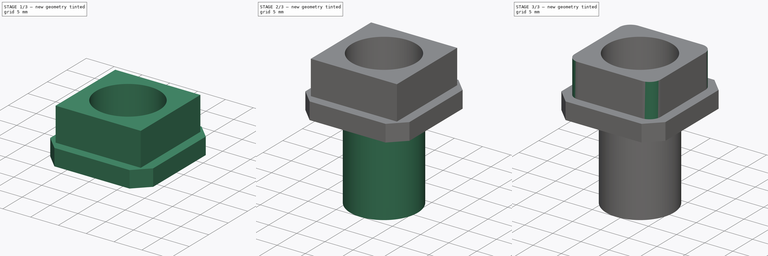
[diagram: build sequence overview — one tinted view per stage of 3, left to right]
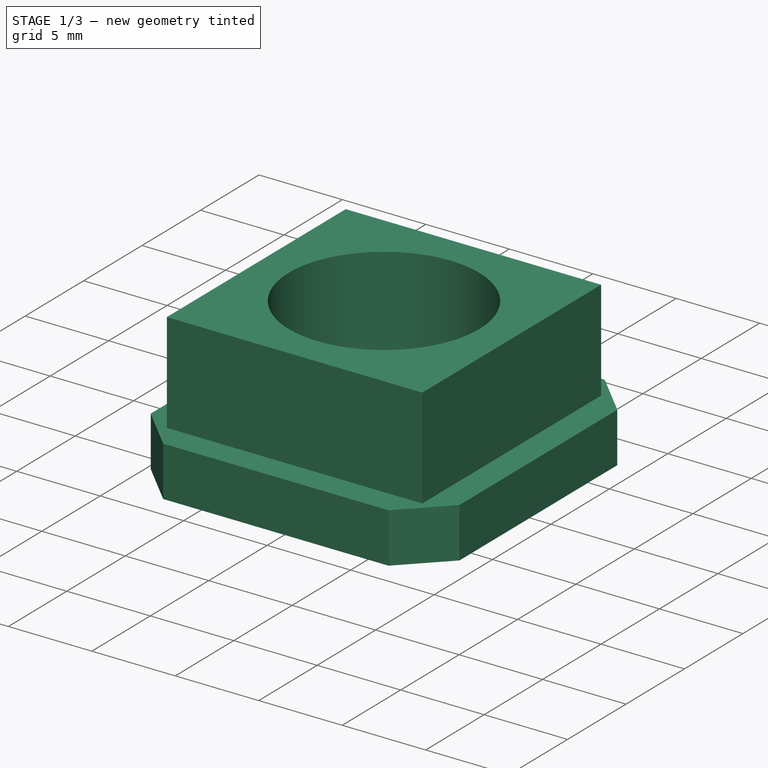
[diagram: stage 1 of 3 — iso view after this stage's code; geometry added in this stage tinted green]
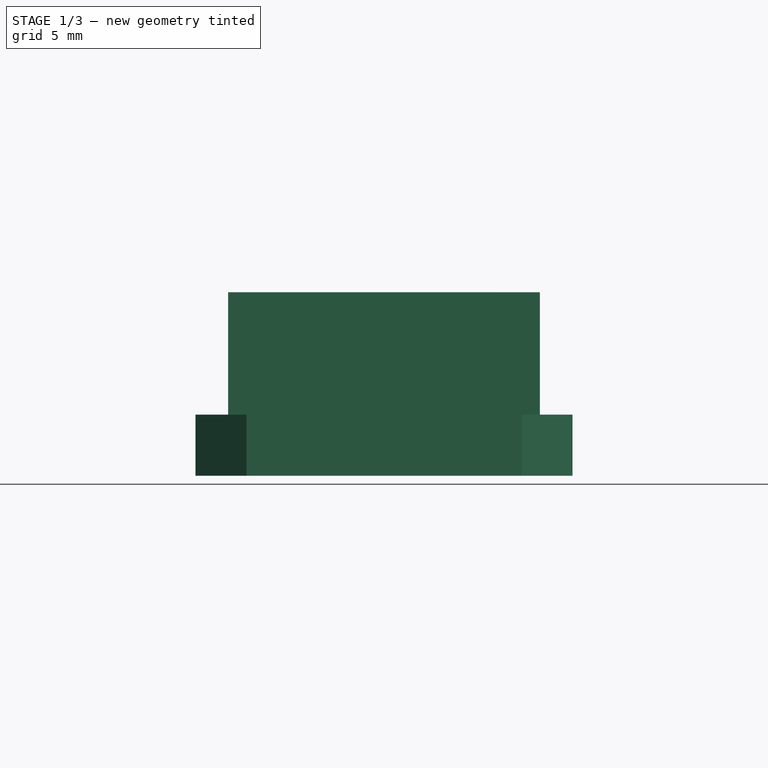
[diagram: stage 1 of 3 — front view after this stage's code; geometry added in this stage tinted green]
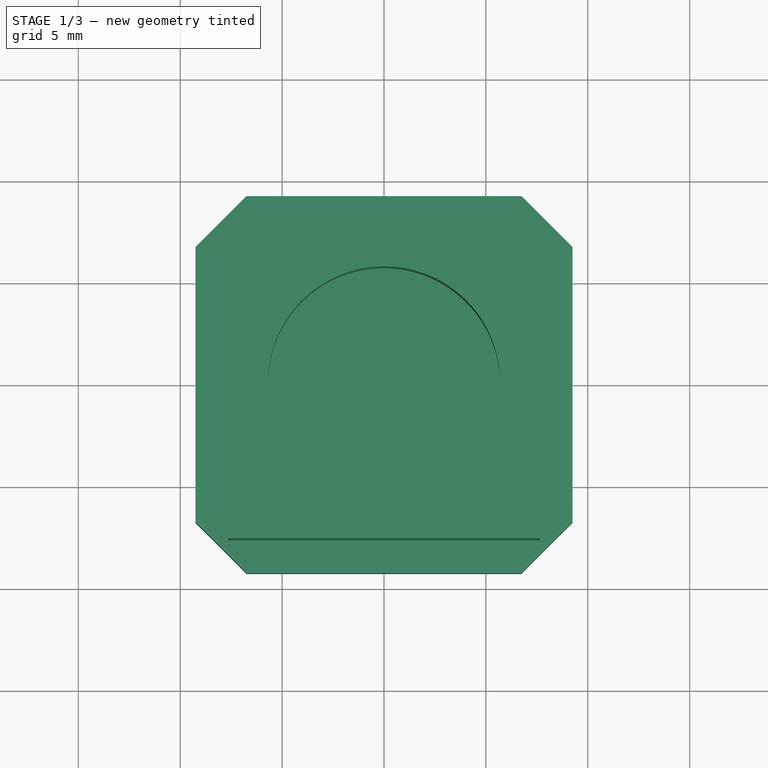
[diagram: stage 1 of 3 — top view after this stage's code; geometry added in this stage tinted green]
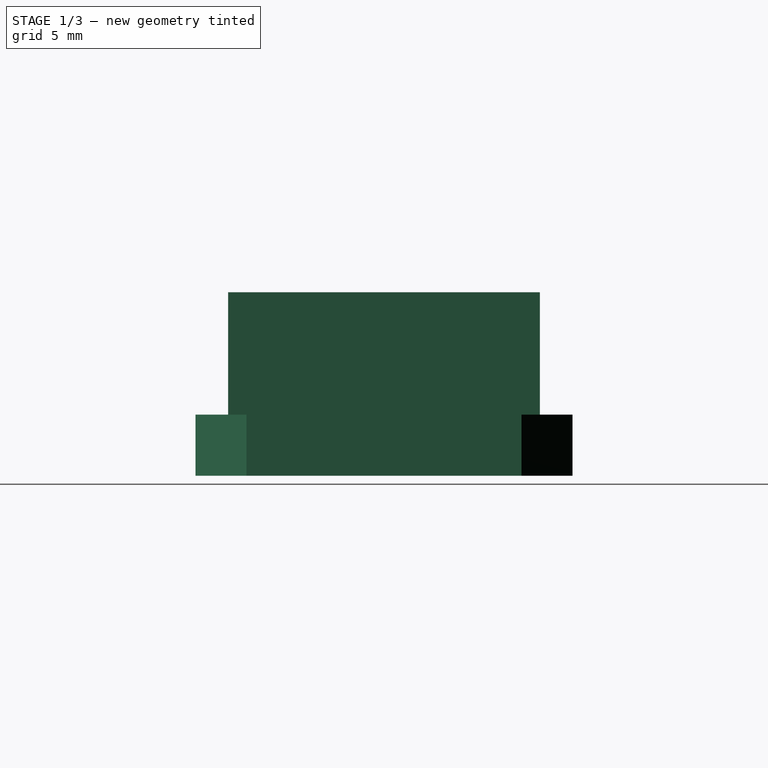
[diagram: stage 1 of 3 — right view after this stage's code; geometry added in this stage tinted green]
FCSTD DOCUMENT  (FreeCAD 0.15R4671 (Git))
Label: Capless Drive
License: All rights reserved
LicenseURL: http://en.wikipedia.org/wiki/All_rights_reserved
objects: Sketcher::SketchObject×4, PartDesign::Pad×3, PartDesign::Pocket×1, PartDesign::Fillet×1
note: 13 computed .brp shape members not serialized (recipe doc carries the construction recipe); baked Part::Feature solids carry a one-line shape summary decoded from their .brp

FEATURE [Sketcher::SketchObject] Sketch
  sketch-geometry (12):
    g0: LineSegment [constr] StartX=-9.25 StartY=9.25 StartZ=0 EndX=9.25 EndY=9.25 EndZ=0
    g1: LineSegment [constr] StartX=9.25 StartY=9.25 StartZ=0 EndX=9.25 EndY=-9.25 EndZ=0
    g2: LineSegment [constr] StartX=9.25 StartY=-9.25 StartZ=0 EndX=-9.25 EndY=-9.25 EndZ=0
    g3: LineSegment [constr] StartX=-9.25 StartY=-9.25 StartZ=0 EndX=-9.25 EndY=9.25 EndZ=0
    g4: LineSegment StartX=-9.25 StartY=6.75 StartZ=0 EndX=-6.75 EndY=9.25 EndZ=0
    g5: LineSegment StartX=-6.75 StartY=9.25 StartZ=0 EndX=6.75 EndY=9.25 EndZ=0
    g6: LineSegment StartX=6.75 StartY=9.25 StartZ=0 EndX=9.25 EndY=6.75 EndZ=0
    g7: LineSegment StartX=9.25 StartY=6.75 StartZ=0 EndX=9.25 EndY=-6.75 EndZ=0
    g8: LineSegment StartX=9.25 StartY=-6.75 StartZ=0 EndX=6.75 EndY=-9.25 EndZ=0
    g9: LineSegment StartX=6.75 StartY=-9.25 StartZ=0 EndX=-6.75 EndY=-9.25 EndZ=0
    g10: LineSegment StartX=-6.75 StartY=-9.25 StartZ=0 EndX=-9.25 EndY=-6.75 EndZ=0
    g11: LineSegment StartX=-9.25 StartY=-6.75 StartZ=0 EndX=-9.25 EndY=6.75 EndZ=0
  constraints (35):
    c: Coincident(g0,g1)
    c: Coincident(g1,g2)
    c: Coincident(g2,g3)
    c: Coincident(g3,g0)
    c: Horizontal(g2)
    c: Vertical(g1)
    c: Equal(g3,g0)
    c: Symmetric(g0,g0,g-2)
    c: Symmetric(g2,g0,g-1)
    c: Distance(g0) = 18.5
    c: PointOnObject(g4,g3)
    c: PointOnObject(g4,g0)
    c: Coincident(g4,g5)
    c: PointOnObject(g5,g0)
    c: Coincident(g5,g6)
    c: Coincident(g6,g7)
    c: PointOnObject(g7,g1)
    c: Coincident(g7,g8)
    c: PointOnObject(g8,g2)
    c: Coincident(g8,g9)
    c: Coincident(g9,g10)
    c: PointOnObject(g10,g3)
    c: Coincident(g10,g11)
    c: Coincident(g11,g4)
    c: Symmetric(g9,g8,g-2)
    c: Symmetric(g4,g5,g-2)
    c: Symmetric(g6,g7,g-1)
    c: Symmetric(g10,g4,g-1)
    c: Equal(g5,g7)
    c: Equal(g7,g9)
    c: Equal(g9,g11)
    c: Equal(g4,g6)
    c: Equal(g6,g8)
    c: Equal(g8,g10)
    c: Distance(g11) = 13.5
FEATURE [PartDesign::Pad] Pad
  Length = 3
  Length2 = 100
  Sketch = -> Sketch
  Type = 0
FEATURE [Sketcher::SketchObject] Sketch001
  Placement = pos=(0,0,3) rot=(0,0,1;0rad)
  Support = -> Pad [Face10]
  sketch-geometry (5):
    g0: LineSegment StartX=-7.65 StartY=7.65 StartZ=0 EndX=7.65 EndY=7.65 EndZ=0
    g1: LineSegment StartX=7.65 StartY=7.65 StartZ=0 EndX=7.65 EndY=-7.65 EndZ=0
    g2: LineSegment StartX=7.65 StartY=-7.65 StartZ=0 EndX=-7.65 EndY=-7.65 EndZ=0
    g3: LineSegment StartX=-7.65 StartY=-7.65 StartZ=0 EndX=-7.65 EndY=7.65 EndZ=0
    g4: Circle CenterX=0 CenterY=0 CenterZ=0 NormalX=0 NormalY=0 NormalZ=1 Radius=5.7
  constraints (14):
    c: Coincident(g0,g1)
    c: Coincident(g1,g2)
    c: Coincident(g2,g3)
    c: Coincident(g3,g0)
    c: Horizontal(g0)
    c: Horizontal(g2)
    c: Vertical(g1)
    c: Vertical(g3)
    c: Coincident(g4,g-1)
    c: Equal(g0,g3)
    c: Symmetric(g0,g0,g-2)
    c: Symmetric(g0,g2,g-1)
    c: Radius(g4) = 5.7
    c: Distance(g0) = 15.3
FEATURE [PartDesign::Pad] Pad001
  Length = 6
  Length2 = 100
  Sketch = -> Sketch001
  Type = 0
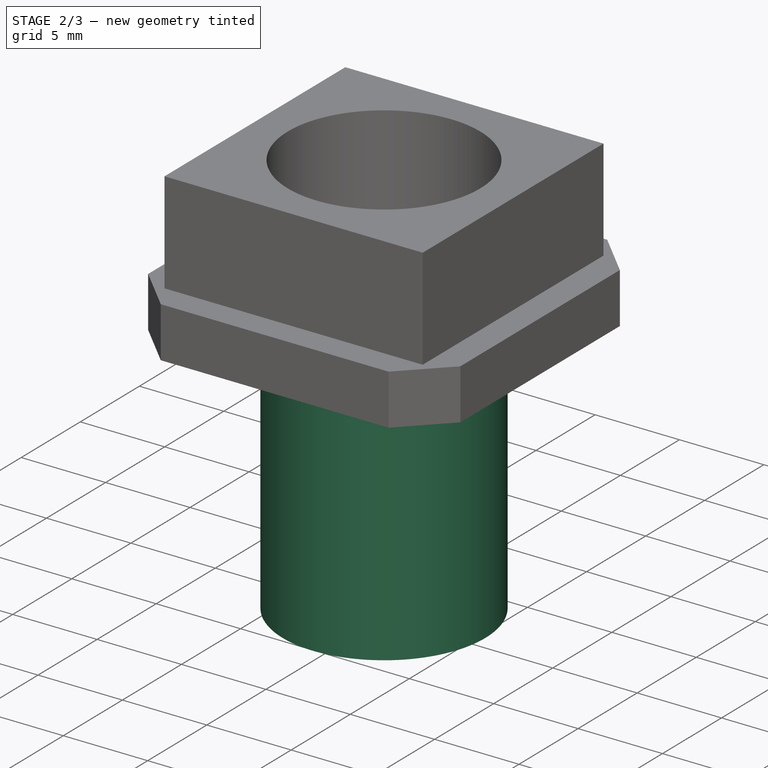
[diagram: stage 2 of 3 — iso view after this stage's code; geometry added in this stage tinted green]
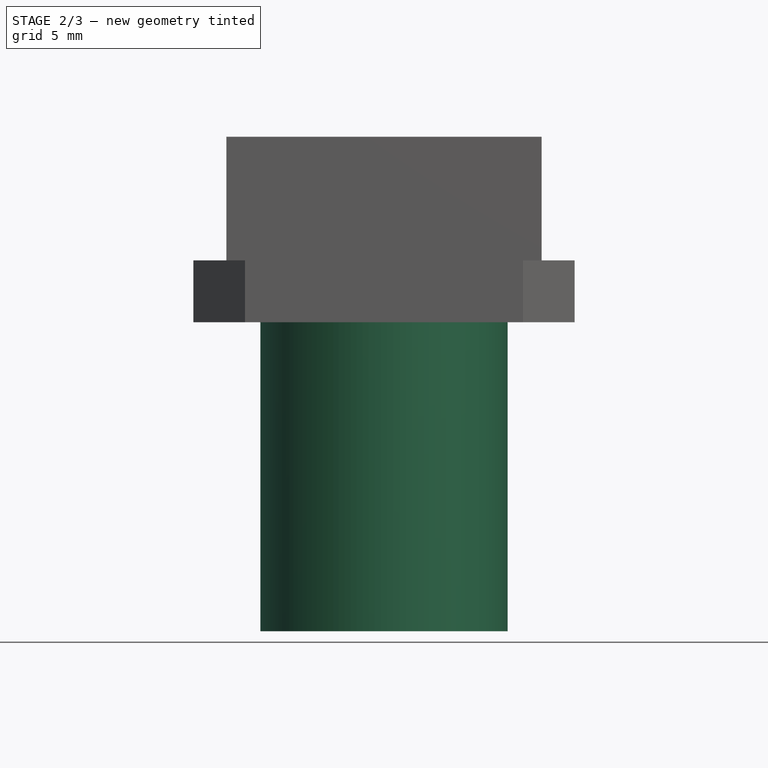
[diagram: stage 2 of 3 — front view after this stage's code; geometry added in this stage tinted green]
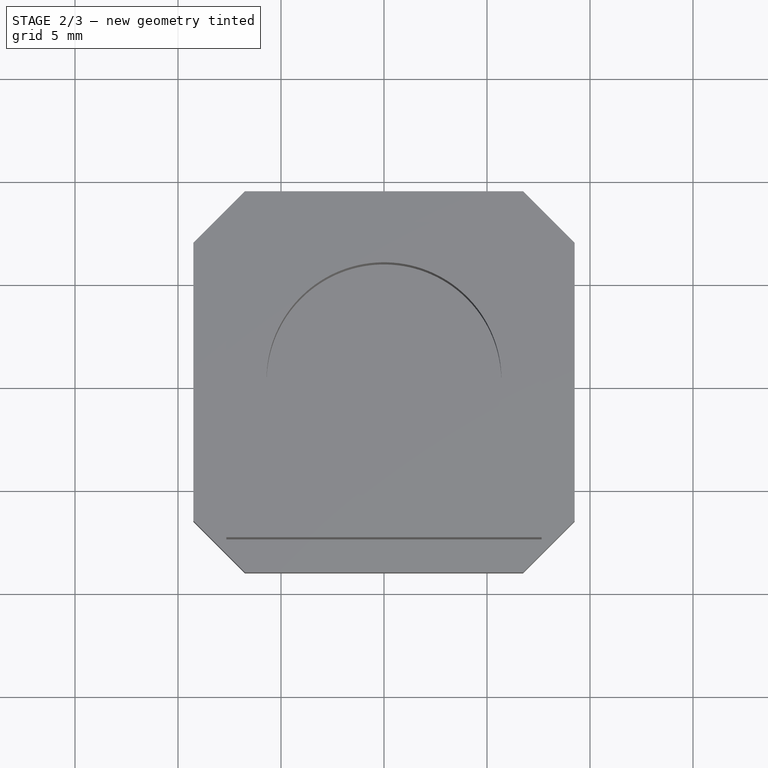
[diagram: stage 2 of 3 — top view after this stage's code; geometry added in this stage tinted green]
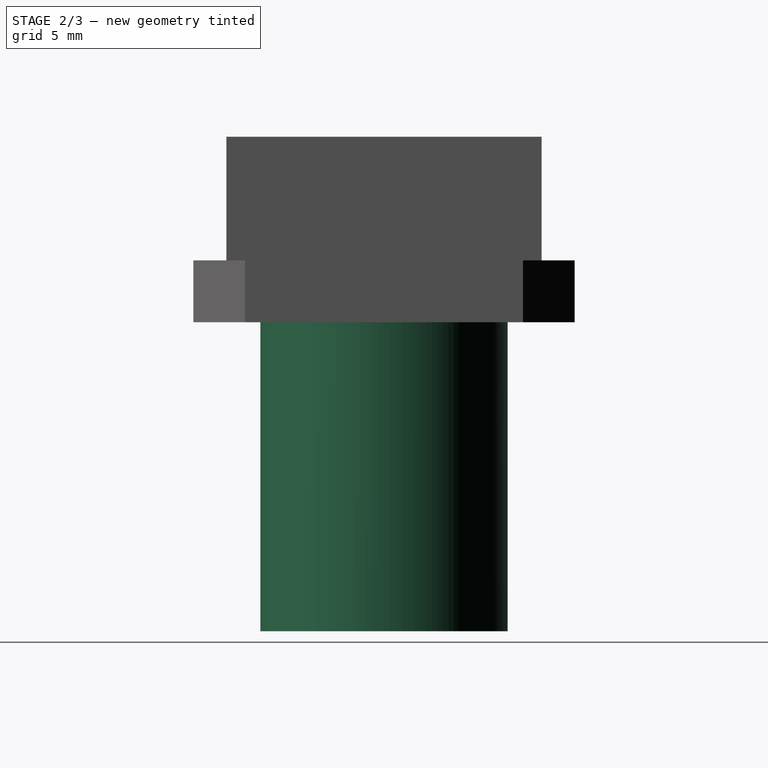
[diagram: stage 2 of 3 — right view after this stage's code; geometry added in this stage tinted green]
FEATURE [Sketcher::SketchObject] Sketch002
  Placement = pos=(0,0,0) rot=(1,0,0;3.14159rad)
  Support = -> Pad001 [Face4]
  sketch-geometry (1):
    g0: Circle CenterX=0 CenterY=0 CenterZ=0 NormalX=0 NormalY=0 NormalZ=1 Radius=6
  constraints (2):
    c: Coincident(g0,g-1)
    c: Radius(g0) = 6
FEATURE [PartDesign::Pad] Pad002
  Length = 15
  Length2 = 100
  Sketch = -> Sketch002
  Type = 0
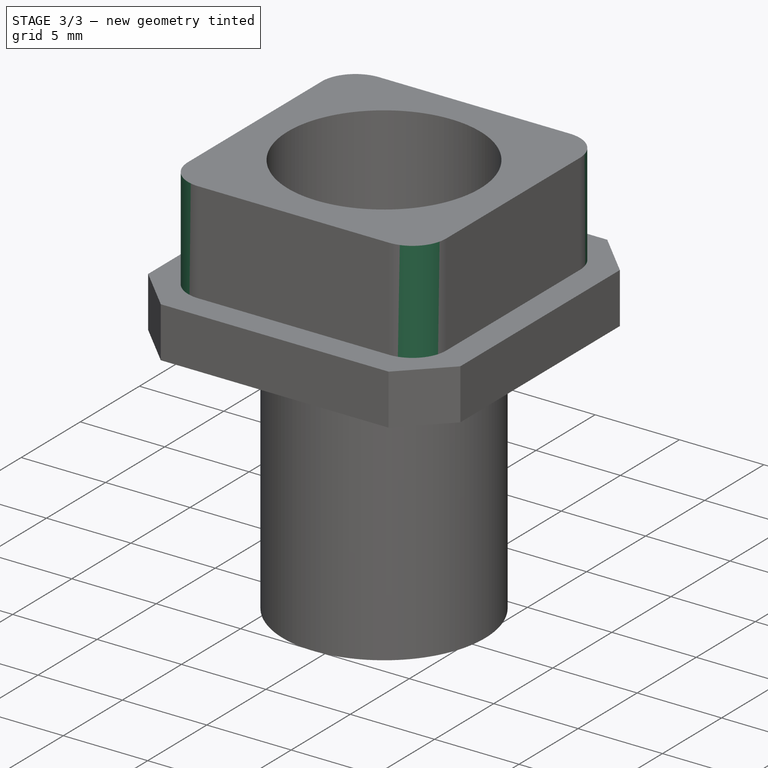
[diagram: stage 3 of 3 — iso view after this stage's code; geometry added in this stage tinted green]
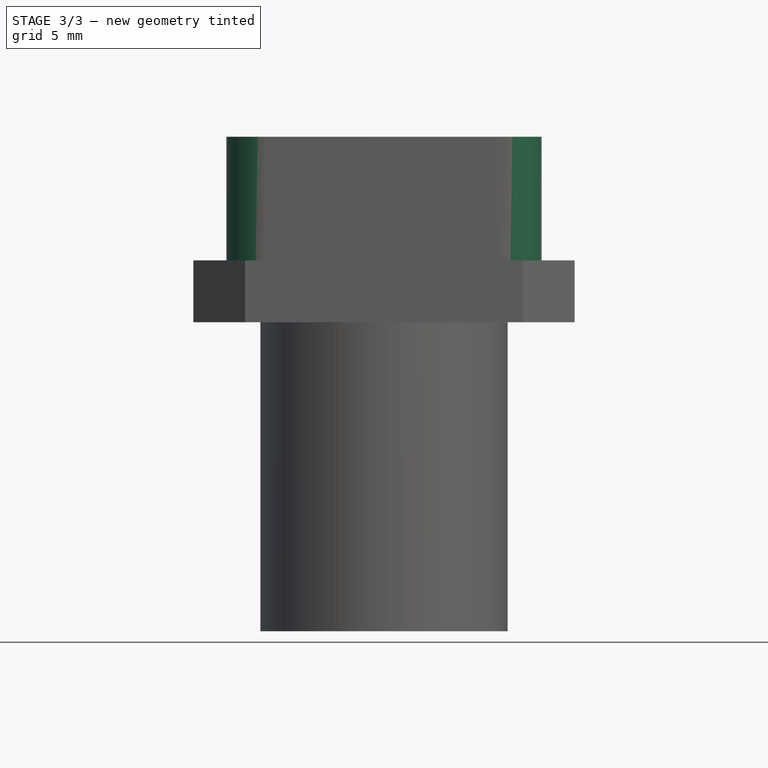
[diagram: stage 3 of 3 — front view after this stage's code; geometry added in this stage tinted green]
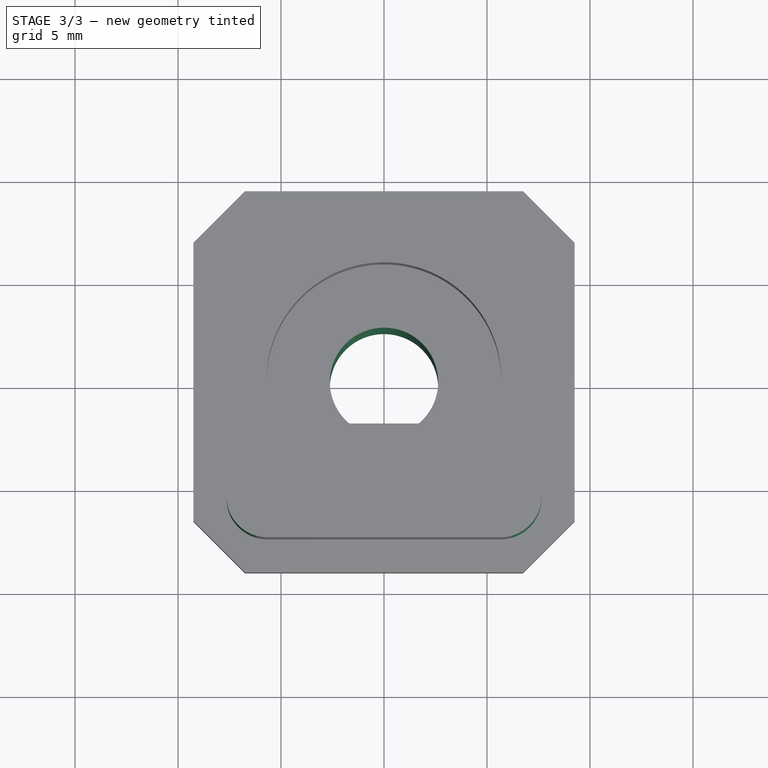
[diagram: stage 3 of 3 — top view after this stage's code; geometry added in this stage tinted green]
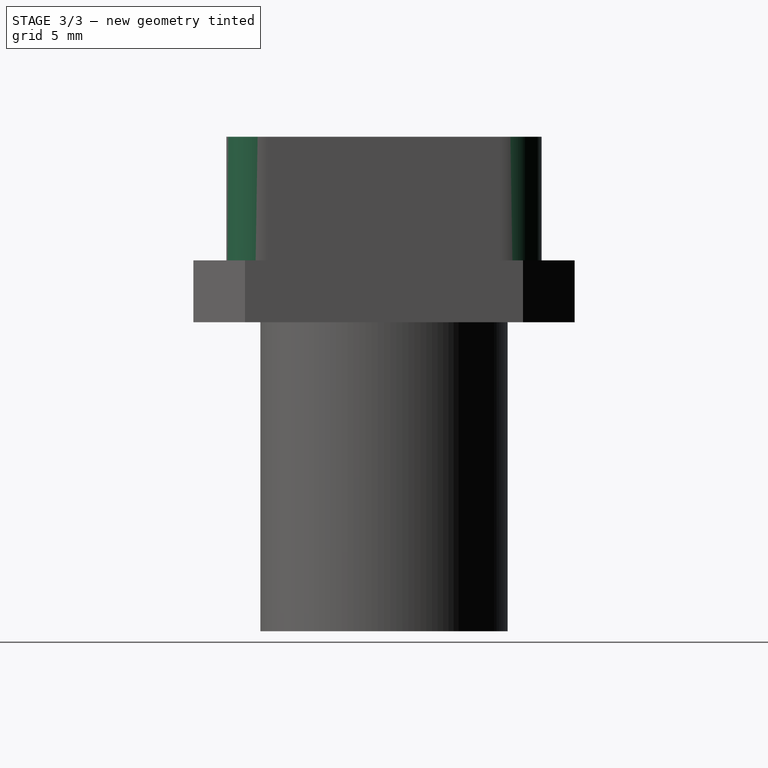
[diagram: stage 3 of 3 — right view after this stage's code; geometry added in this stage tinted green]
FEATURE [Sketcher::SketchObject] Sketch003
  Placement = pos=(0,0,-15) rot=(1,0,0;3.14159rad)
  Support = -> Pad002 [Face16]
  sketch-geometry (4):
    g0: Circle [constr] CenterX=0 CenterY=0 CenterZ=0 NormalX=0 NormalY=0 NormalZ=1 Radius=2.63
    g1: LineSegment StartX=-1.68419 StartY=2.02 StartZ=0 EndX=1.68419 EndY=2.02 EndZ=0
    g2: ArcOfCircle CenterX=0 CenterY=0 CenterZ=0 NormalX=0 NormalY=0 NormalZ=1 Radius=2.63 StartAngle=2.26579 EndAngle=7.15899
    g3: GeomPoint [constr] X=0 Y=-2.63 Z=0
  constraints (11):
    c: Coincident(g0,g-1)
    c: Radius(g0) = 2.63
    c: PointOnObject(g1,g0)
    c: PointOnObject(g1,g0)
    c: Horizontal(g1)
    c: Coincident(g2,g-1)
    c: Coincident(g2,g1)
    c: Coincident(g2,g1)
    c: PointOnObject(g3,g0)
    c: PointOnObject(g3,g-2)
    c: DistanceY(g1,g3) = -4.65
FEATURE [PartDesign::Pocket] Pocket
  Length = 8
  Sketch = -> Sketch003
  Type = 1
FEATURE [PartDesign::Fillet] Fillet
  Base = -> Pocket [Edge35,Edge37,Edge32,Edge34]
  Radius = 2
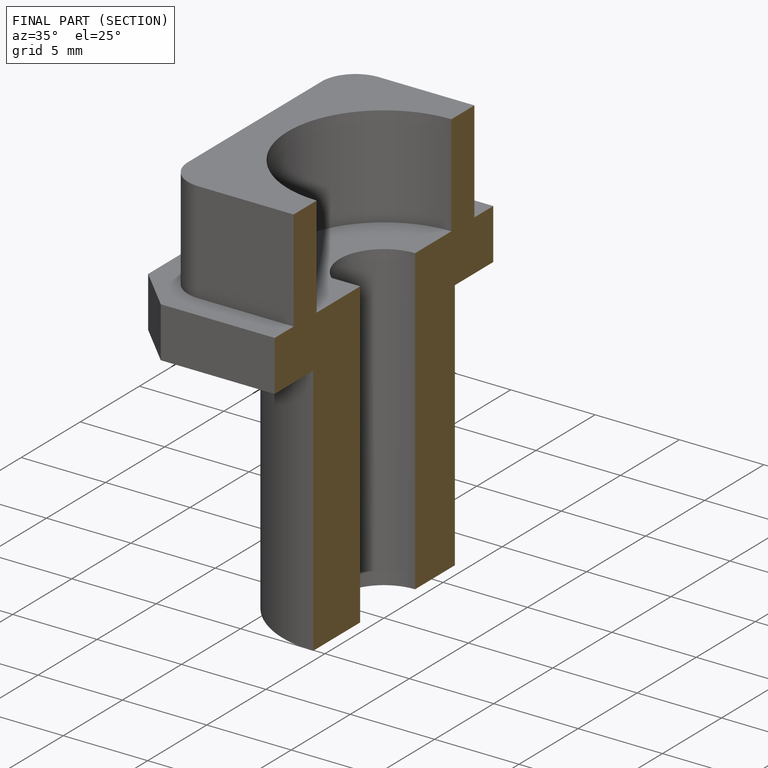
[diagram: finished part — half-section view (interior)]
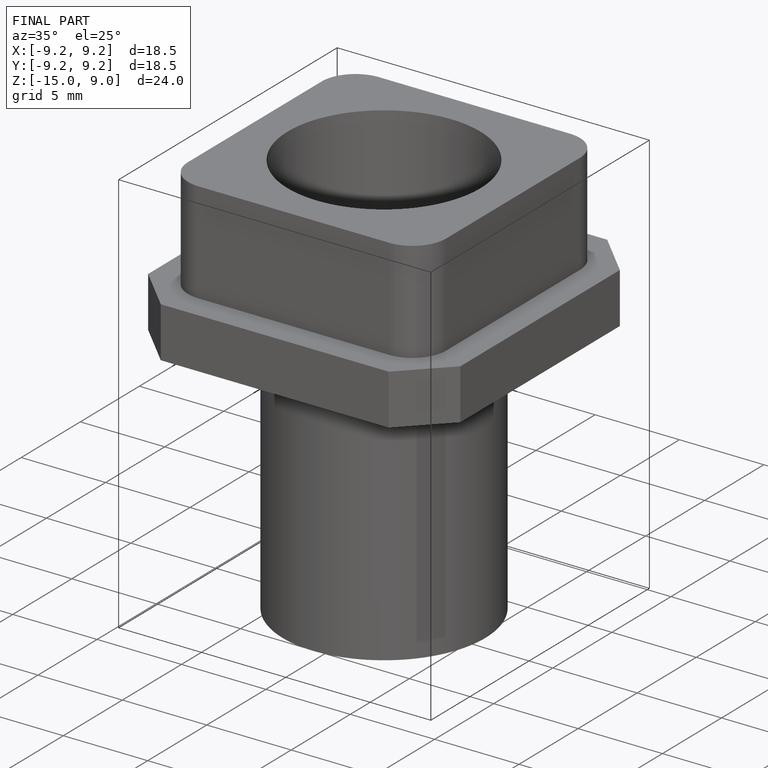
[diagram: finished part — iso view with bounding-box wireframe]
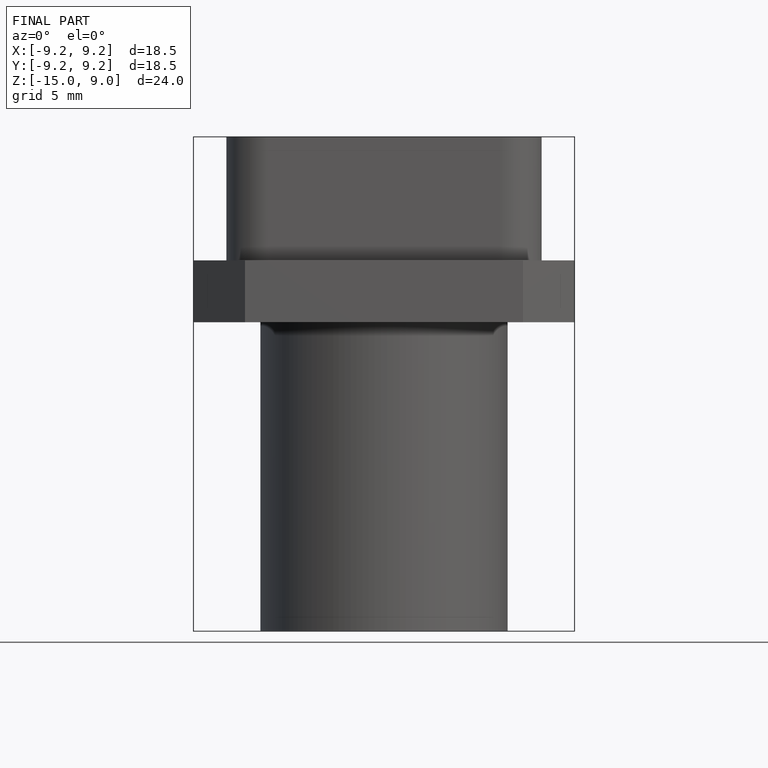
[diagram: finished part — front view with bounding-box wireframe]
